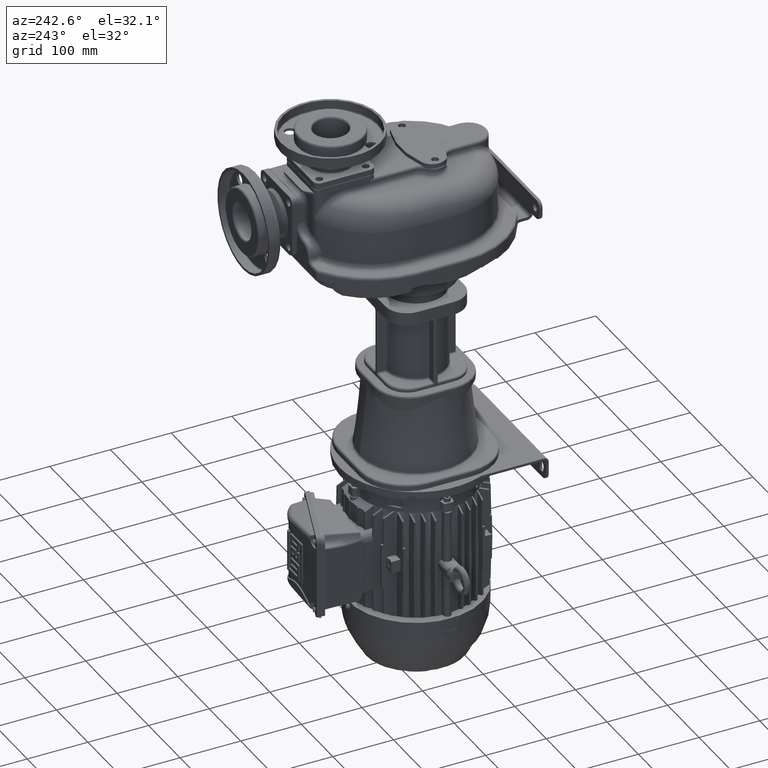
[diagram: clean part render]
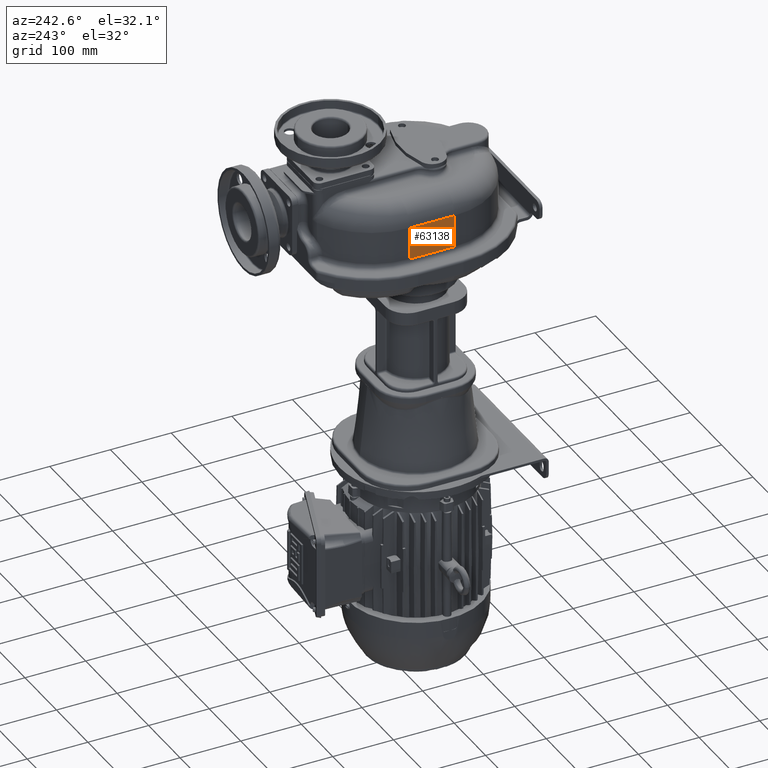
[diagram: same view with one face highlighted and labeled with its STEP entity id]
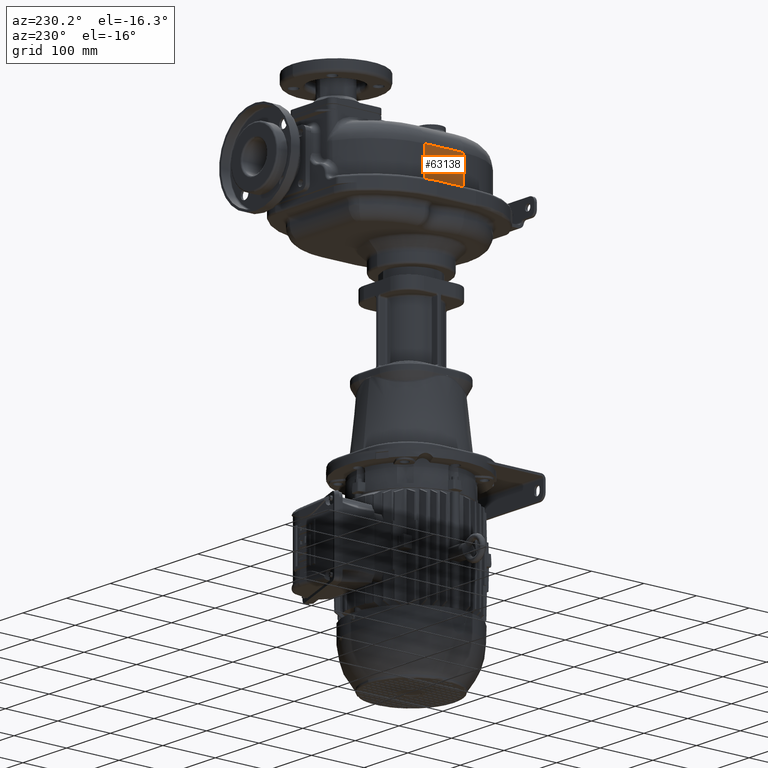
[diagram: same view with one face highlighted and labeled with its STEP entity id]
A machine part, auxiliary view. The second image highlights one B-rep face of the part: STEP entity #63138.
A second angle (auxiliary view) of the same face is appended — the face is thin or edge-on in the first view.
In plain terms, the highlighted planar face has unit normal (-1, 0, 0).
Its self-contained STEP definition (entity closure, byte-faithful):
#12498=DIRECTION('',(0.E0,0.E0,-1.E0));
#12499=VECTOR('',#12498,5.35E1);
#12500=CARTESIAN_POINT('',(-1.14E2,2.29E2,4.8E1));
#12501=LINE('',#12500,#12499);
#12502=DIRECTION('',(0.E0,-1.E0,0.E0));
#12503=VECTOR('',#12502,7.4E1);
#12504=CARTESIAN_POINT('',(-1.14E2,2.29E2,-5.5E0));
#12505=LINE('',#12504,#12503);
#12506=DIRECTION('',(0.E0,-1.E0,0.E0));
#12507=VECTOR('',#12506,7.4E1);
#12508=CARTESIAN_POINT('',(-1.14E2,2.29E2,4.8E1));
#12509=LINE('',#12508,#12507);
#12510=DIRECTION('',(0.E0,0.E0,-1.E0));
#12511=VECTOR('',#12510,5.35E1);
#12512=CARTESIAN_POINT('',(-1.14E2,1.55E2,4.8E1));
#12513=LINE('',#12512,#12511);
#38703=CARTESIAN_POINT('',(-1.14E2,1.55E2,4.8E1));
#38704=VERTEX_POINT('',#38703);
#38709=CARTESIAN_POINT('',(-1.14E2,2.29E2,4.8E1));
#38710=VERTEX_POINT('',#38709);
#38841=CARTESIAN_POINT('',(-1.14E2,2.29E2,-5.5E0));
#38843=VERTEX_POINT('',#38841);
#38846=CARTESIAN_POINT('',(-1.14E2,1.55E2,-5.5E0));
#38847=VERTEX_POINT('',#38846);
#63125=CARTESIAN_POINT('',(-1.14E2,1.55E2,-2.35E1));
#63126=DIRECTION('',(-1.E0,0.E0,0.E0));
#63127=DIRECTION('',(0.E0,1.E0,0.E0));
#63128=AXIS2_PLACEMENT_3D('',#63125,#63126,#63127);
#63129=PLANE('',#63128);
#63130=ORIENTED_EDGE('',*,*,#61039,.F.);
#63131=ORIENTED_EDGE('',*,*,#63120,.F.);
#63133=ORIENTED_EDGE('',*,*,#63132,.T.);
#63135=ORIENTED_EDGE('',*,*,#63134,.T.);
#63136=EDGE_LOOP('',(#63130,#63131,#63133,#63135));
#63137=FACE_OUTER_BOUND('',#63136,.F.);
#63138=ADVANCED_FACE('',(#63137),#63129,.T.);
#61039=EDGE_CURVE('',#38843,#38847,#12505,.T.);
#63120=EDGE_CURVE('',#38710,#38843,#12501,.T.);
#63132=EDGE_CURVE('',#38710,#38704,#12509,.T.);
#63134=EDGE_CURVE('',#38704,#38847,#12513,.T.);